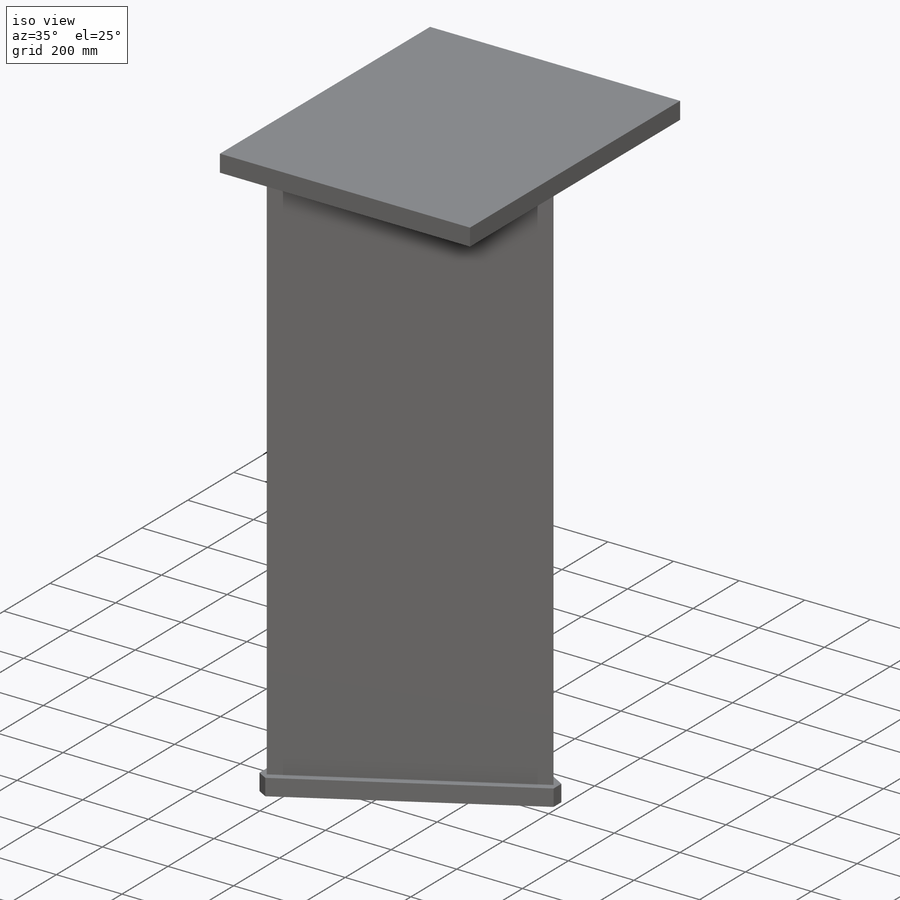
[diagram: iso view]
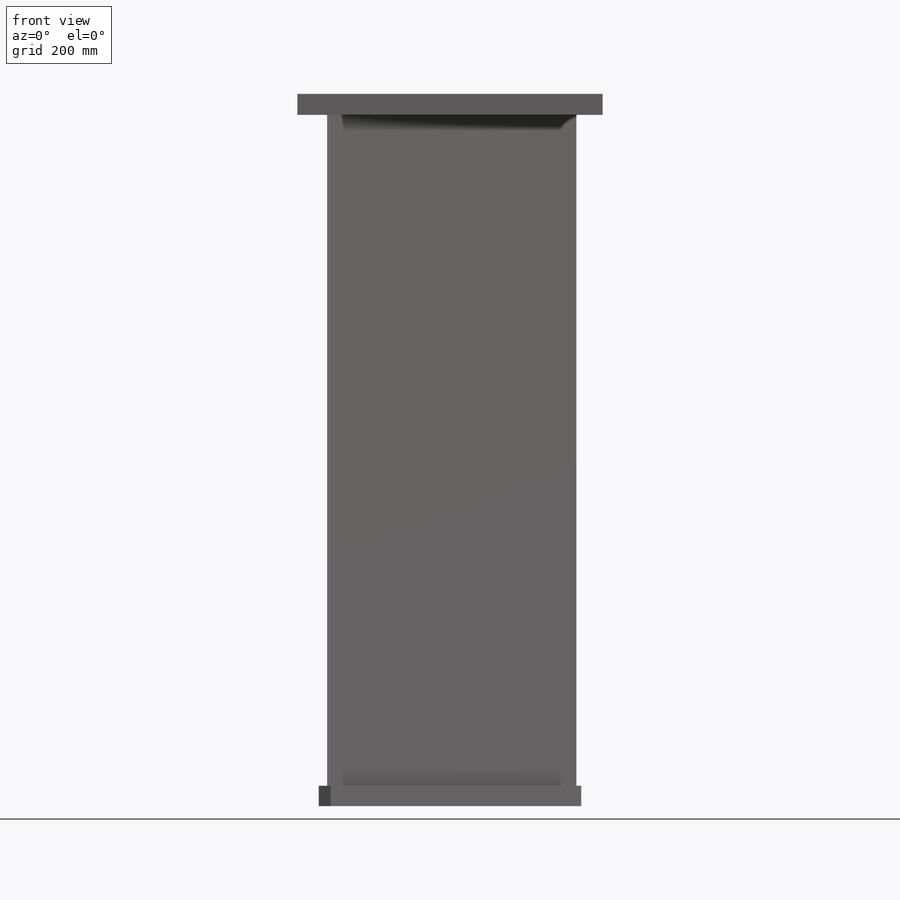
[diagram: front view]
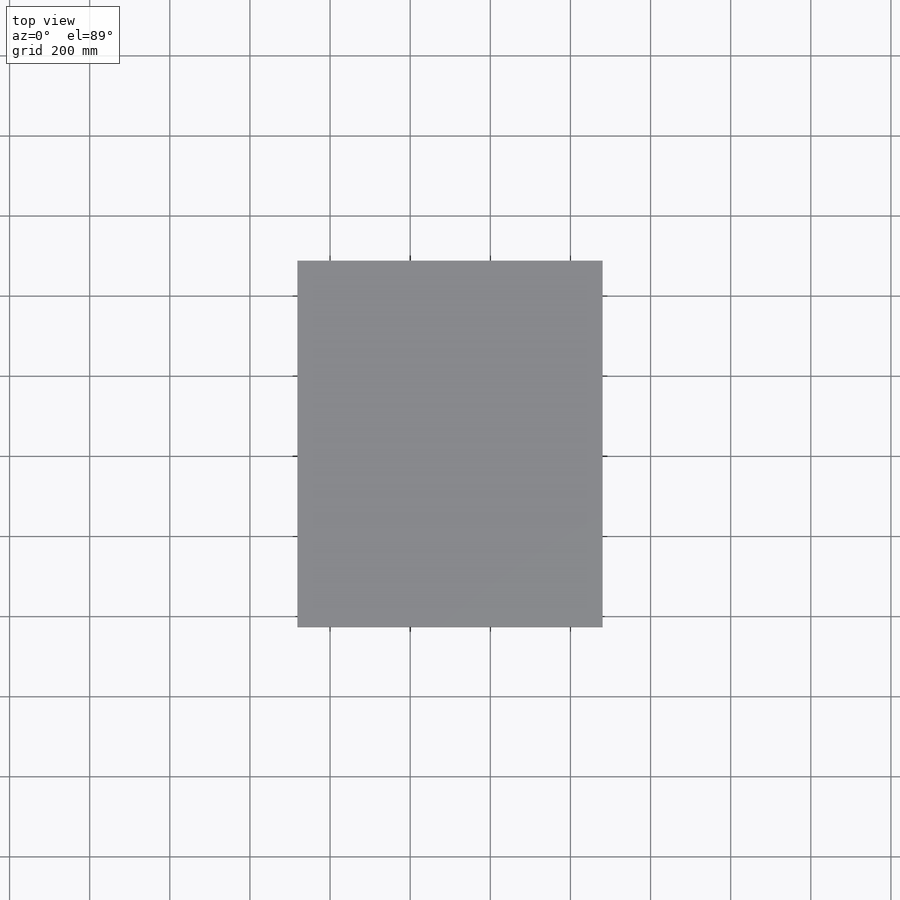
[diagram: top view]
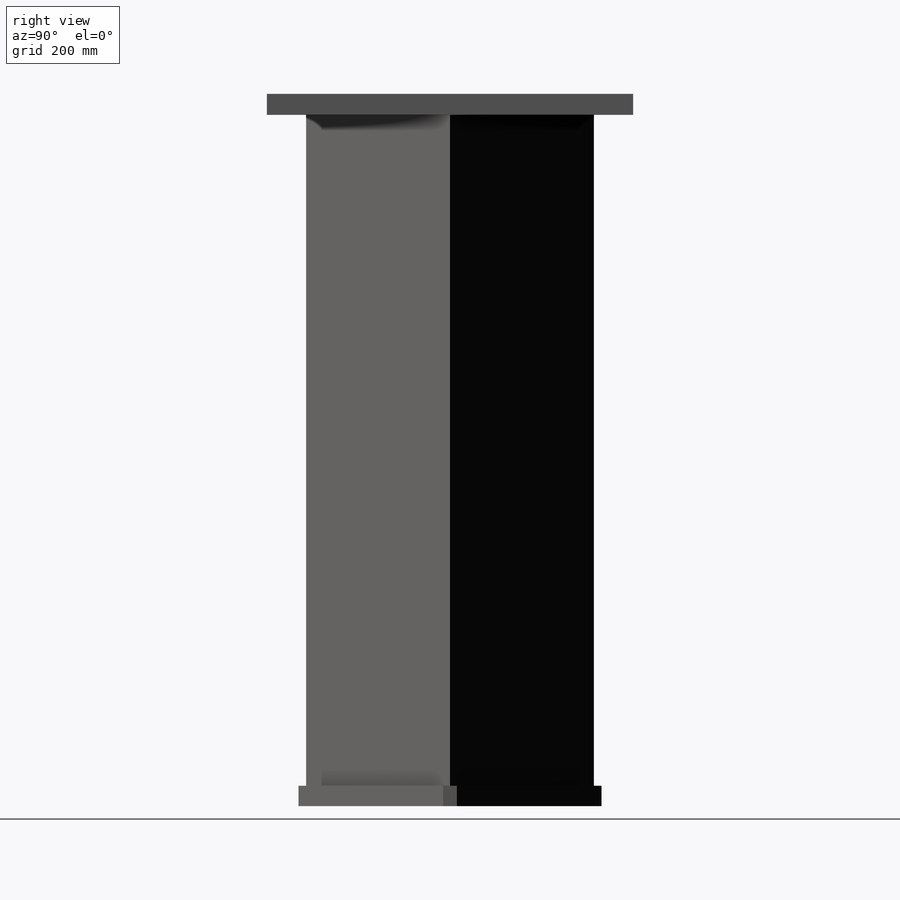
[diagram: right view]
SOLIDWORKS PART (.sldprt)
format: sldprt  version: not decoded by parser v0  size: 2,440,704 bytes
history: native  units: mm
features: plane x15, sketch x13, extrude x7, material x1 + 1 further entry (+17 scaffold rows collapsed)
feature tree (54):
  scaffold x17  (default folders/planes/origin — collapsed)
  material  "Material <not specified>"
  "Origin"  ID=-1
  sketch  "Sketch31"  dims[c1.D3=34.1376mm c1.D1=622.3mm c1.D2=20.828mm c1.D4=110.0mm c2.D4=30.0deg c2.D1=0.0mm c2.D2=18.923mm]
  extrude  "Base & Grout"  Depth=25.4mm
  sketch  "Sketch33"  dims[D1=914.4mm D2=762.0mm D3=~99.348652mm]
  extrude  "Table"  Depth=52.451mm
  sketch  "Sketch1"  dims[D1=622.3mm D2=90.0deg]
  extrude  "Pier Body"  [1 undecoded]
  sketch  "Sketch32"  dims[D1=0.0mm]
  extrude  "LHO 1" Lift"  Depth=25.4mm
  plane  "Lateral Table Center"
  sketch  "Cover & VP Outline"  dims[c1.D1=127.0mm c1.D2=304.8mm c1.D3=381.0mm c1.D4=934.32mm c1.D16=842.518mm c2.D2=279.4mm c2.D4=97.79mm c2.D5=88.9mm c2.D6=1854.2mm c2.D7=254.0mm c2.D8=50.038mm c2.D9=9.525mm c3.D8=50.038mm c3.D10=38.227mm c3.D11=273.05mm c3.D12=25.4mm c3.D13=~33.576617mm c3.D9=9.525mm c4.D13=34.0469mm c4.D12=25.4mm c5.D13=210.3mm c5.D14=50.8mm c5.D15=203.2mm c5.D16=19.05mm c5.D2=304.165mm c5.D3=~902.704709mm c6.D2=584.2mm c6.D3=5.0mm c6.D5=5.0mm c6.D16=5.0mm c6.D17=5.0mm c7.D16=5.0mm c7.D17=5.0mm c8.D16=5.0mm c8.D17=5.0mm c9.D16=5.0mm c9.D17=5.0mm c10.D16=5.0mm c10.D17=5.0mm c11.D16=5.0mm c11.D17=5.0mm c12.D16=5.0mm c12.D17=5.0mm c13.D16=5.0mm c13.D17=5.0mm c14.D16=5.0mm c14.D17=5.0mm c15.D16=5.0mm c15.D17=5.0mm c16.D16=5.0mm c16.D17=5.0mm c17.D16=5.0mm c17.D17=5.0mm c18.D16=5.0mm c18.D17=5.0mm c19.D16=5.0mm c19.D17=5.0mm c20.D16=5.0mm c20.D17=5.0mm c21.D16=5.0mm c21.D17=5.0mm c22.D16=5.0mm c22.D17=5.0mm c23.D16=5.0mm c23.D17=5.0mm c24.D16=5.0mm c24.D17=5.0mm c25.D16=5.0mm c25.D3=5.0mm c25.D5=~1862.404771mm c25.D6=1854.2mm c25.D17=90.0deg c26.D5=~1861.535831mm c26.D6=1854.2mm]
  plane  "Beam Transmission Plane"  Offset=441.325mm
  plane  ""Beam Entry" Plane"
  sketch  "3DSketch ETM-Y  BSC6-H2"  dims[c1.D1=~295.881093mm c1.D3=203.2mm c1.D2=~210.040906mm c2.D3=203.2mm c2.D2=203.2mm c3.D3=203.2mm c3.D1=~181.432704mm c4.D3=203.2mm c4.D2=1112.52mm c4.D4=1094.2mm c4.D1=~20.591692mm c5.D3=~81.551692mm c5.D1=~1506.812917mm c6.D3=~1506.812917mm c6.D1=~60.889798mm c6.D2=~60.889798mm c7.D3=~1506.812917mm c7.D4=1128.7mm c7.D1=~60.889798mm c7.D2=~60.889798mm c8.D1=261.065mm c9.D1=~13.128742deg c9.D4=6.7914deg c9.D2=~268.071822mm c10.D2=~347.355587deg c10.D4=~347.355587deg c11.D2=~268.071822mm c12.D2=~12.644413deg c12.D4=~14.204369deg c13.D2=278.765mm c14.D2=~15.714246deg c14.D1=12.19deg c15.D1=278.765mm c16.D1=~17.16496deg c16.D2=~280.739862mm c17.D2=~12.106788deg c17.D4=12.19deg c18.D2=278.765mm c19.D2=~13.933257deg c19.D4=~13.933257deg c20.D2=121.365mm c21.D2=~17.502989deg c21.D3=~340.563606mm c21.D9=304.8mm c21.D4=76.0mm c21.D5=~1868.585625mm c22.D3=1854.2mm c22.D6=121.365mm c23.D6=~18.484957deg c23.D7=~217.052564mm c24.D7=~18.493586deg c24.Lateral Launch Position=279.4mm]
  plane  "AdvLIGO Front Plane BSC6-H2"
  plane  "AdvLIGO Top Plane BSC6-H2"
  plane  "AdvLIGO Right Plane BSC6-H2"
  sketch  "BSC6-H2 ETM-Y Axial"  dims[c1.D1=340.0mm c1.D4=1524.0mm c1.D5=136.652mm c1.D7=197.612mm c1.D8=1136.65mm c1.D9=1225.042mm c1.D2=200.0mm c1.D3=80.0mm c1.D6=400.0mm c2.D1=340.0mm c2.D2=340.0mm c2.D3=340.0mm c2.D4=1524.0mm c2.D5=~208.713654mm c2.D6=197.612mm c2.D12=340.0mm c3.D2=200.0mm c3.D3=80.0mm c3.D5=~456.368574mm c4.D5=96.0deg c4.D7=~731.711666mm c5.D7=22.0deg c5.D8=752.0mm c5.D9=156.3mm c5.D10=~156.351178mm c5.D11=~301.696455mm c5.D12=156.3mm c6.D11=~152.665076mm c6.D12=~301.696455mm c7.D11=~301.696455mm c7.D12=~760.71924mm c7.D9=156.3mm c7.D10=58.166mm c8.D11=~153.614643mm c8.D12=400.0mm c8.D2=752.0mm c8.D3=156.3mm c8.D4=~768.071409mm c8.D5=~9.939964mm c8.D6=~296.916693mm c9.D5=156.3mm c9.D6=~51.796142mm c9.D3=156.3mm c9.D4=25.4mm c10.D5=2579.7mm c10.D6=714.832mm c10.D7=~194.939311mm c10.D8=~153.614643mm c10.D11=~133.831371mm c10.D1=151.5mm c10.D2=725.5mm c10.D3=10.668mm c10.D4=~138.756863mm c11.D7=~132.316082mm c11.D8=171.82mm]
  extrude  "3DSketch ETM-X BSC5-H2"  Depth=1246.919089mm
  plane  "AdvLIGO Front Plane BSC5-H2"
  plane  "AdvLIGO Top Plane BSC5-H2"
  plane  "AdvLIGO Right Plane BSC5-H2"
  sketch  "BSC5-H2 ETM-X Axial"
  sketch  "Block-TM Axial-7"  dims[c1.D1=752.0mm c1.D2=156.3mm c1.D3=~3.336521mm c1.D4=~201.018496mm c1.D5=~748.663479mm c1.D6=2606.2mm c1.D7=~154.639432mm c1.D8=~183.65718mm c1.D9=12.7mm c1.D10=12.7mm c2.D3=~16.07977mm]
  extrude  "3DSketch ETM-X  BSC9-H1 BSC4-L1"  Depth=316.990638mm
  plane  "AdvLIGO Front Plane BSC9-H1 BSC4-L1"
  plane  "AdvLIGO Top Plane BSC9-H1 BSC4-L1"
  plane  "AdvLIGO Right Plane BSC9-H1 BSC4-L1"
  sketch  "BSC9-H1 BSC4-L1 ETM-X Axial"
  sketch  "Block-TM Axial-6"  dims[c1.D1=717.0mm c1.D2=143.3mm c1.D3=9.906mm c1.D4=726.906mm c1.D5=2571.2mm c2.D3=~58.578077mm c2.D4=~119.740781mm c2.D6=~85.371752mm c2.D7=12.7mm]
  extrude  "3DSketch ETM-Y BSC10-H1 BSC5-L1"  Depth=1375.186044mm
  plane  "AdvLIGO Front Plane BSC10-H1 BSC5-L1"
  plane  "AdvLIGO Top Plane BSC10-H1 BSC5-L1"
  plane  "AdvLIGO Right Plane BSC10-H1 BSC5-L1"
  sketch  "BSC10-H1 BSC5-L1 ETM-Y Axial"
  sketch  "Block-TM Axial-8"  dims[c1.D1=709.2mm c1.D2=145.1mm c1.D3=37.338mm c1.D4=746.538mm c1.D5=~19.274453mm c1.D6=1854.2mm c2.D3=~115.716349mm c2.D4=97.79mm c2.D5=12.7mm c3.D4=307.34mm c4.D4=~61.256366deg c5.D4=~484.084332mm c6.D4=~28.743634deg]
decode coverage: 16 of 20 modeling features carry decoded parameters; 1 rows unclassified (native names shown)
note: ~ marks probable driven/reference dimensions
note: 1 parameter value undecoded
note: suppression state not decoded; provenance and decode notes live in map.json
